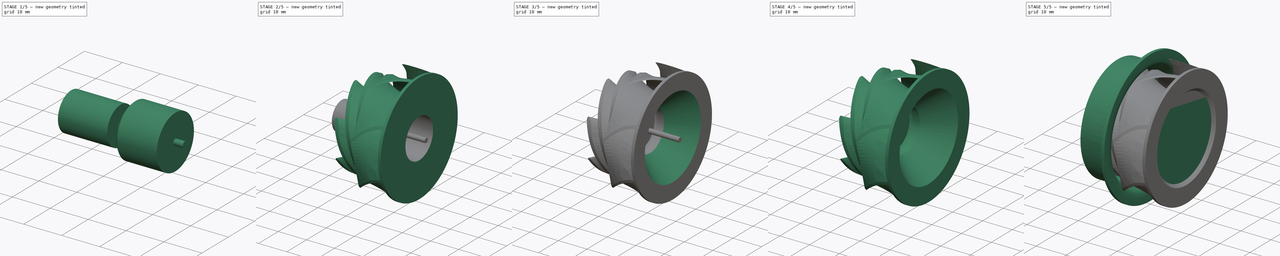
[diagram: build sequence overview — one tinted view per stage of 5, left to right]
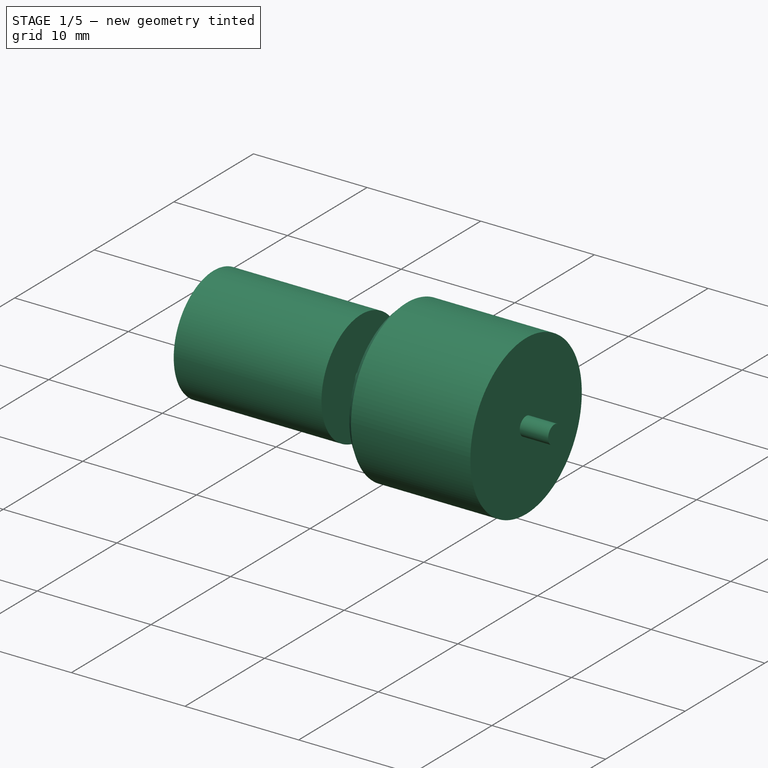
[diagram: stage 1 of 5 — iso view after this stage's code; geometry added in this stage tinted green]
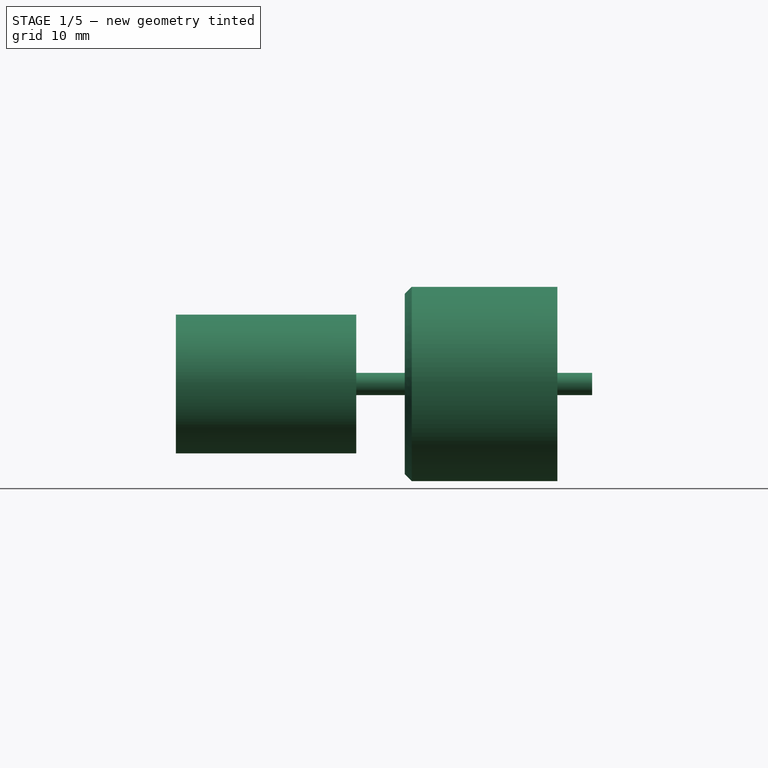
[diagram: stage 1 of 5 — front view after this stage's code; geometry added in this stage tinted green]
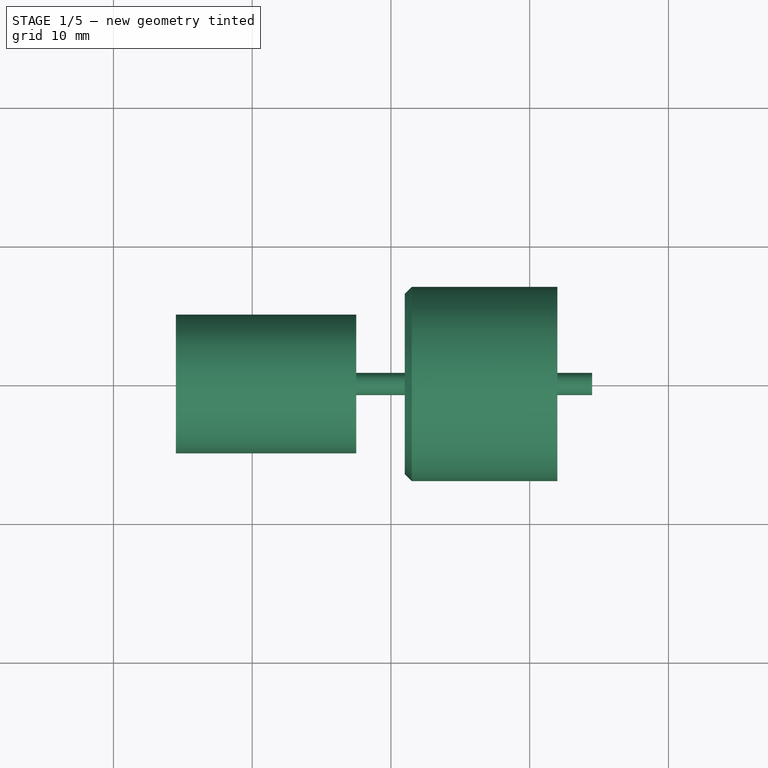
[diagram: stage 1 of 5 — top view after this stage's code; geometry added in this stage tinted green]
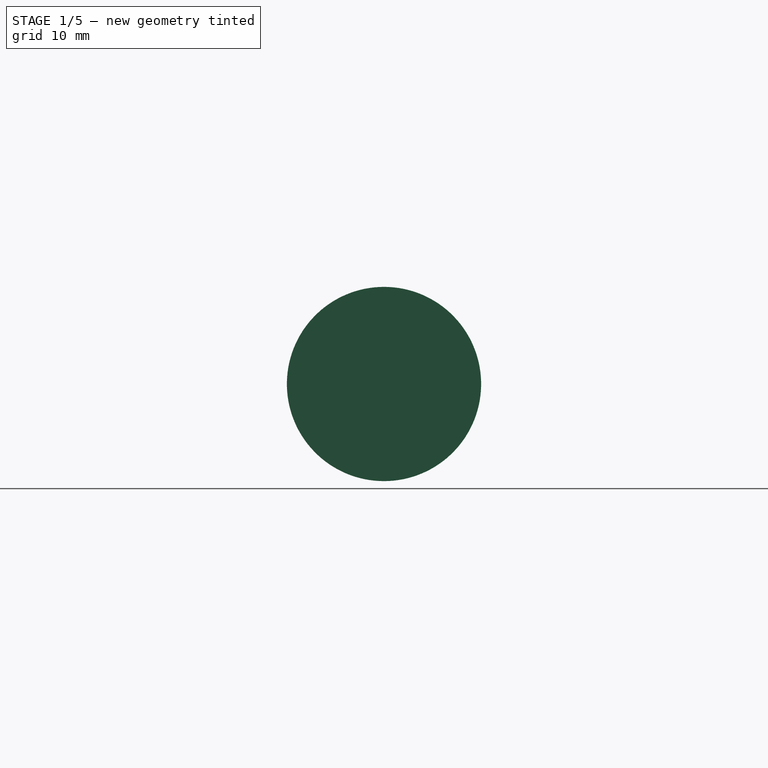
[diagram: stage 1 of 5 — right view after this stage's code; geometry added in this stage tinted green]
FCSTD DOCUMENT  (FreeCAD 0.19R24291 (Git))
Label: impeller
License: Other
LicenseURL: GPL3
objects: Part::Feature×5, Part::Cylinder×5, Part::Chamfer×5, Part::Cut×4, Part::FeaturePython×3, Sketcher::SketchObject×2, PartDesign::Revolution×2, PartDesign::Body×2, Part::MultiFuse×1
note: 31 computed .brp shape members not serialized (recipe doc carries the construction recipe); baked Part::Feature solids carry a one-line shape summary decoded from their .brp

FEATURE [Part::Cylinder] Cylinder001
  Angle = 360
  AttacherType = Attacher::AttachEngine3D
  Height = 11
  Placement = pos=(22,0,5e-15) rot=(0,-1,0;1.5708rad)
  Radius = 7
FEATURE [Part::Chamfer] Chamfer
  Base = -> Cylinder001
  Edges = 1 edges r=0.5: [Edge1]
FEATURE [Part::Cylinder] Cylinder003
  Angle = 360
  AttacherType = Attacher::AttachEngine3D
  Height = 13
  Placement = pos=(7.5,0,8.2e-15) rot=(0,-1,0;1.5708rad)
  Radius = 5
FEATURE [Part::Cylinder] Cylinder004
  Angle = 360
  AttacherType = Attacher::AttachEngine3D
  Height = 28
  Placement = pos=(24.5,0,5.4e-15) rot=(0,1,0;4.71239rad)
  Radius = 0.8
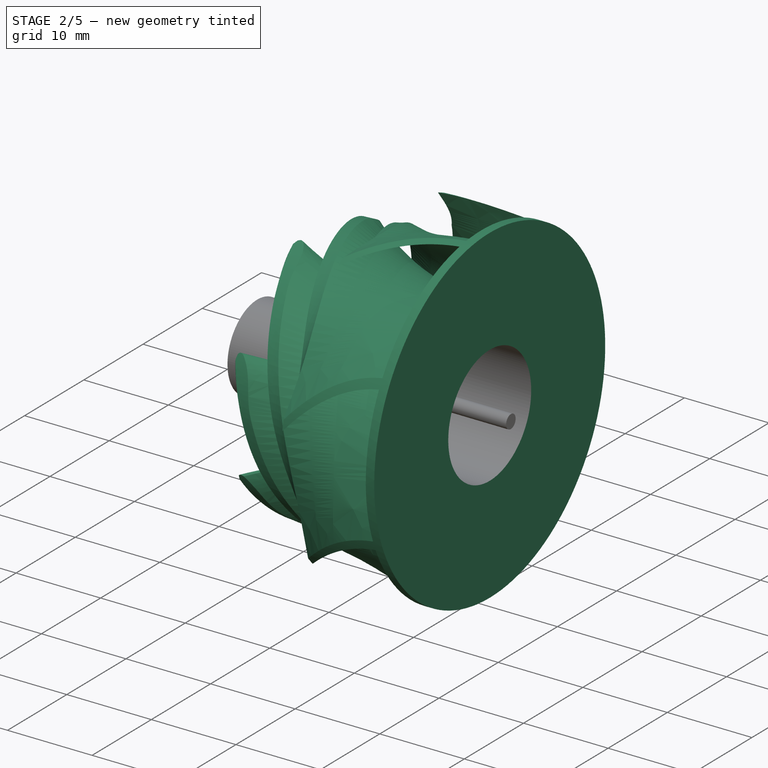
[diagram: stage 2 of 5 — iso view after this stage's code; geometry added in this stage tinted green]
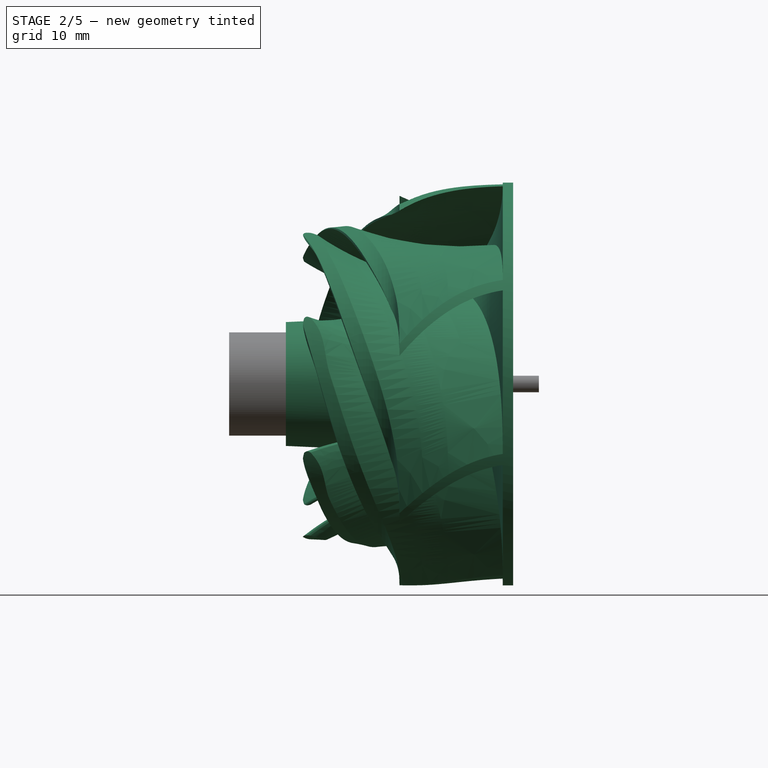
[diagram: stage 2 of 5 — front view after this stage's code; geometry added in this stage tinted green]
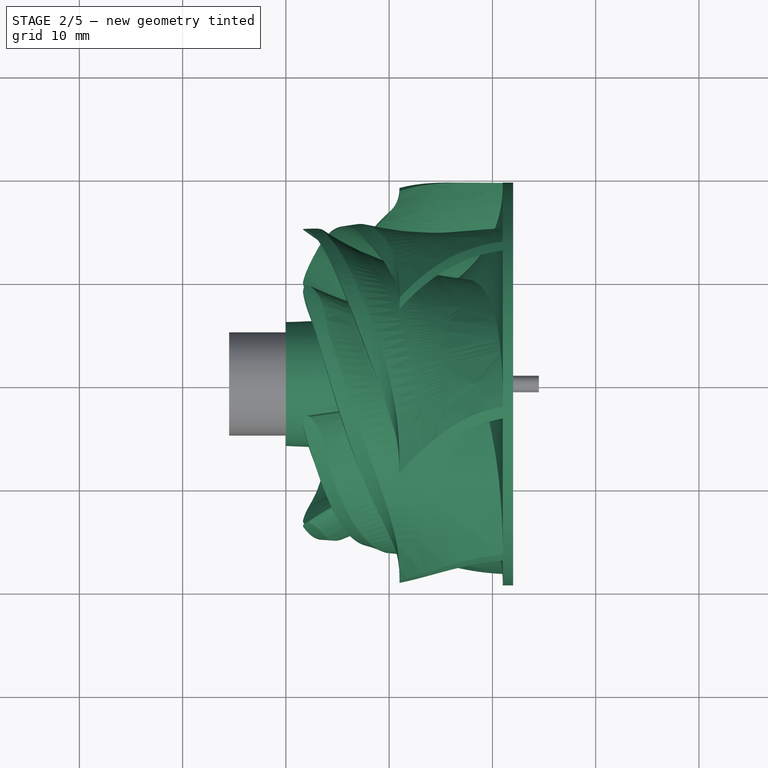
[diagram: stage 2 of 5 — top view after this stage's code; geometry added in this stage tinted green]
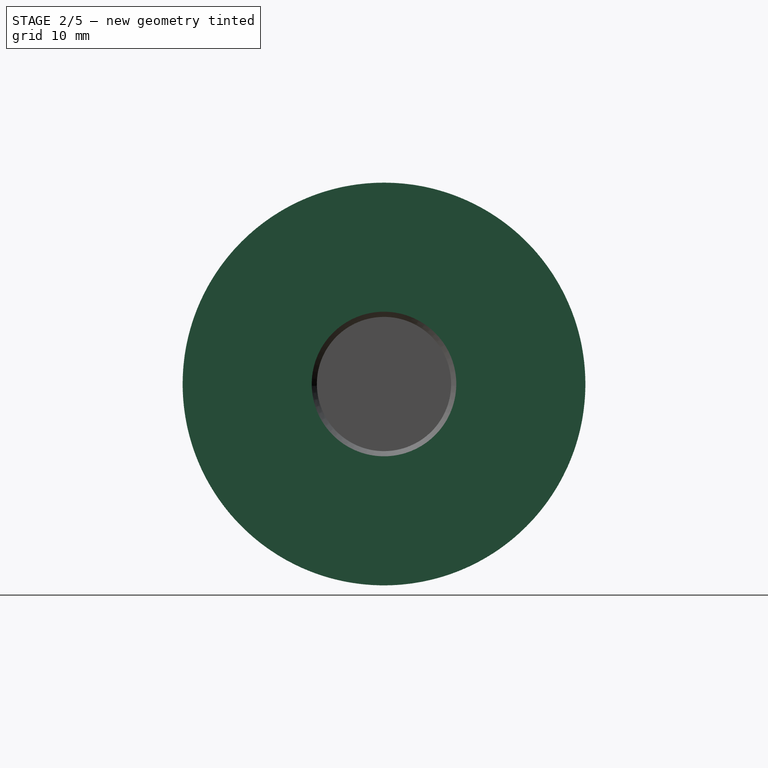
[diagram: stage 2 of 5 — right view after this stage's code; geometry added in this stage tinted green]
FEATURE [PartDesign::Body] Body  label="inner-ramp"
  Group = -> [Sketch,Revolution001]
  Origin = -> Origin
  Tip = -> Revolution001
FEATURE [Part::Feature] Blades001
  shape: bbox 21.08 x 50.2 x 50.64 mm, 70 faces, 7 solids (baked)
FEATURE [Part::Feature] Body002  label="inner-ramp001"
  shape: bbox 21 x 39 x 39 mm, 3 faces (baked)
FEATURE [Part::Cylinder] Cylinder
  Angle = 360
  AttacherType = Attacher::AttachEngine3D
  Height = 1
  Placement = pos=(22,0,4.9e-15) rot=(0,1,0;4.71239rad)
  Radius = 19.5
FEATURE [Part::MultiFuse] Fusion
  Shapes = -> [Blades001,Body002,Cylinder]
FEATURE [Part::Cut] Cut
  Base = -> Fusion
  Tool = -> Chamfer
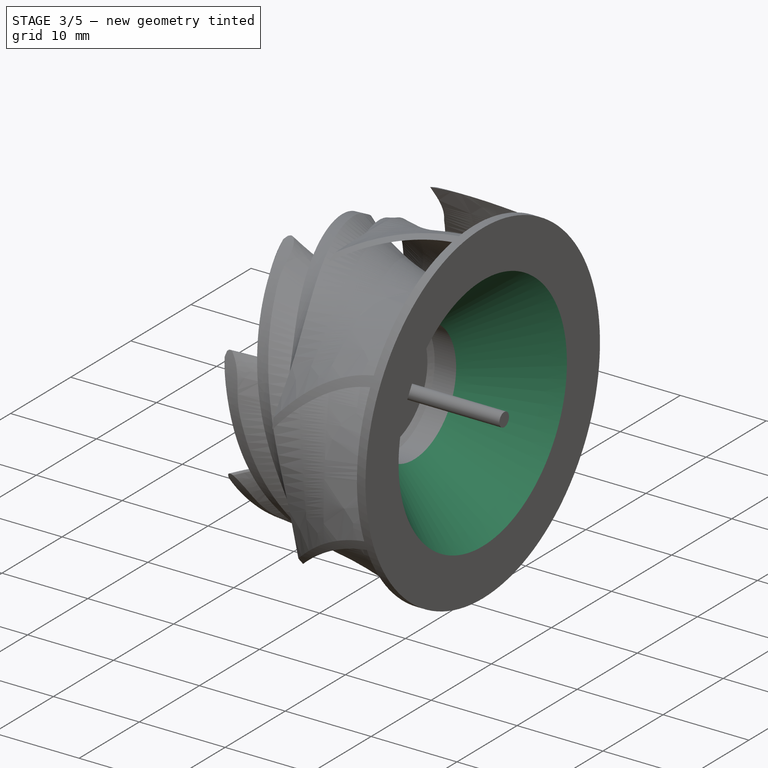
[diagram: stage 3 of 5 — iso view after this stage's code; geometry added in this stage tinted green]
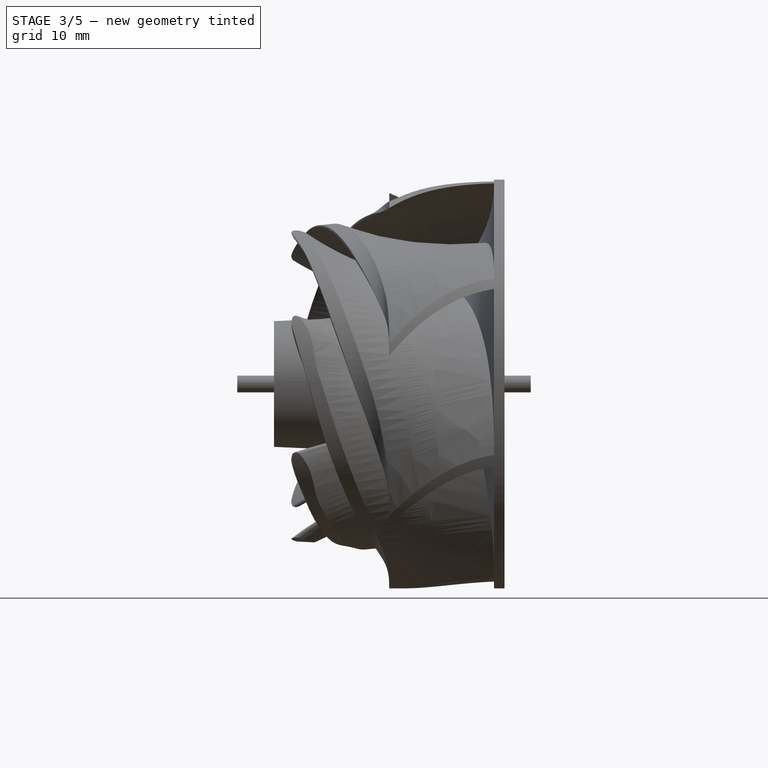
[diagram: stage 3 of 5 — front view after this stage's code; geometry added in this stage tinted green]
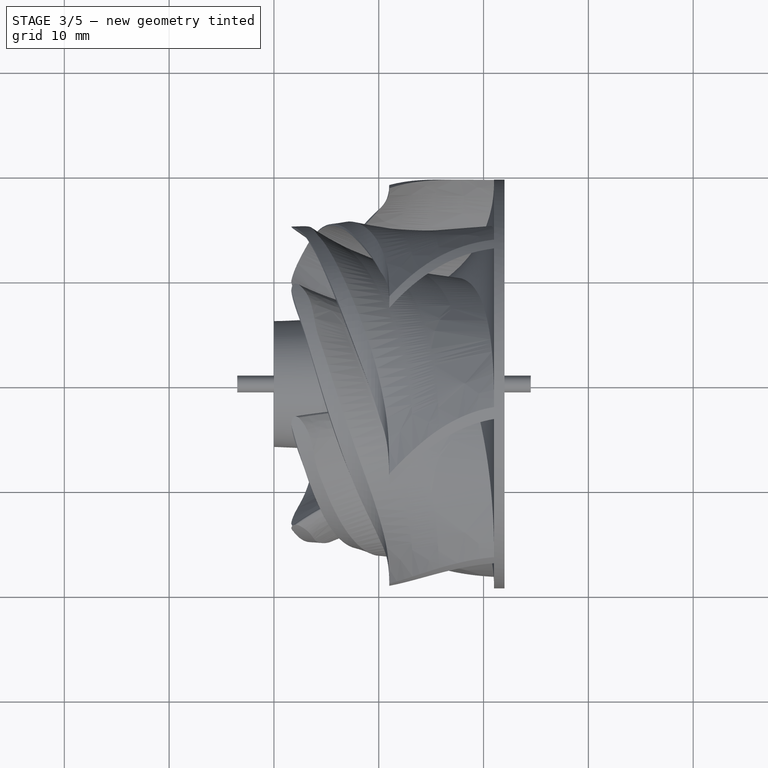
[diagram: stage 3 of 5 — top view after this stage's code; geometry added in this stage tinted green]
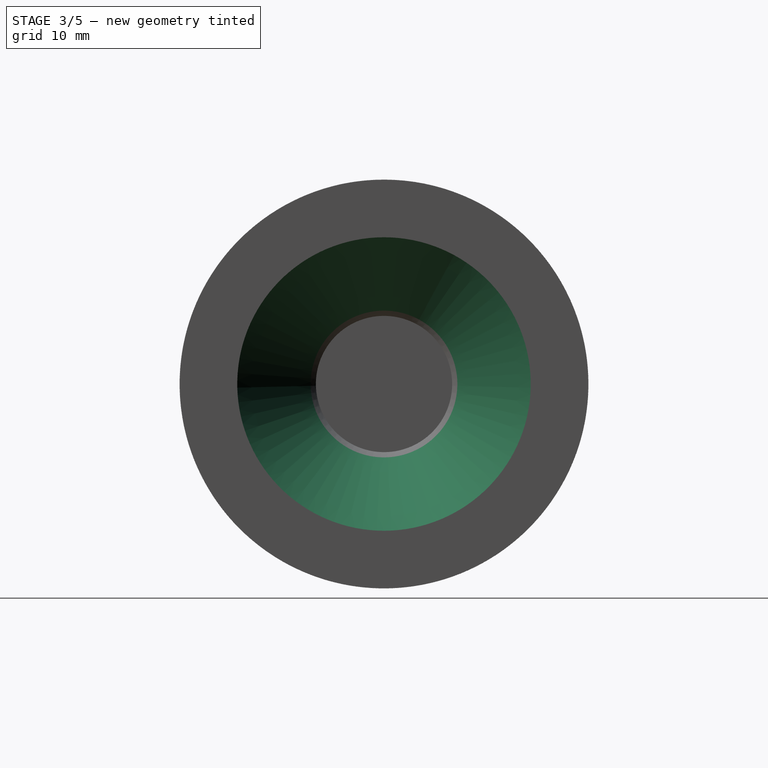
[diagram: stage 3 of 5 — right view after this stage's code; geometry added in this stage tinted green]
FEATURE [Part::Cylinder] Cylinder002
  Angle = 360
  AttacherType = Attacher::AttachEngine3D
  Height = 9
  Placement = pos=(23,0,4.8e-15) rot=(0,-1,0;1.5708rad)
  Radius = 14
FEATURE [Part::Chamfer] Chamfer001
  Base = -> Cylinder002
  Edges = 1 edges: [Edge1 r1=8 r2=7]
FEATURE [Part::Cut] Cut001
  Base = -> Cut
  Tool = -> Cylinder003
FEATURE [Part::Cut] Cut002
  Base = -> Cut001
  Tool = -> Chamfer001
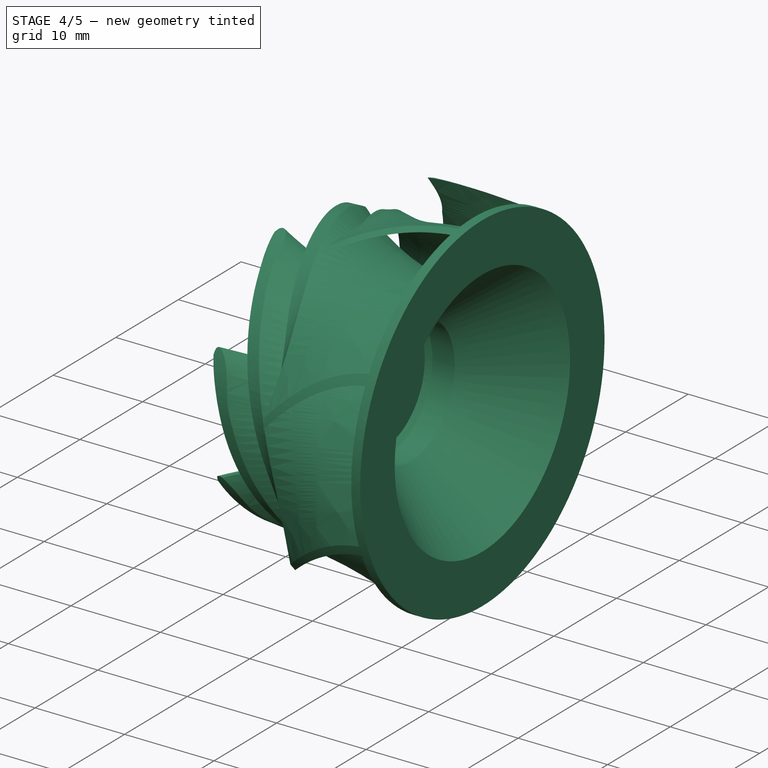
[diagram: stage 4 of 5 — iso view after this stage's code; geometry added in this stage tinted green]
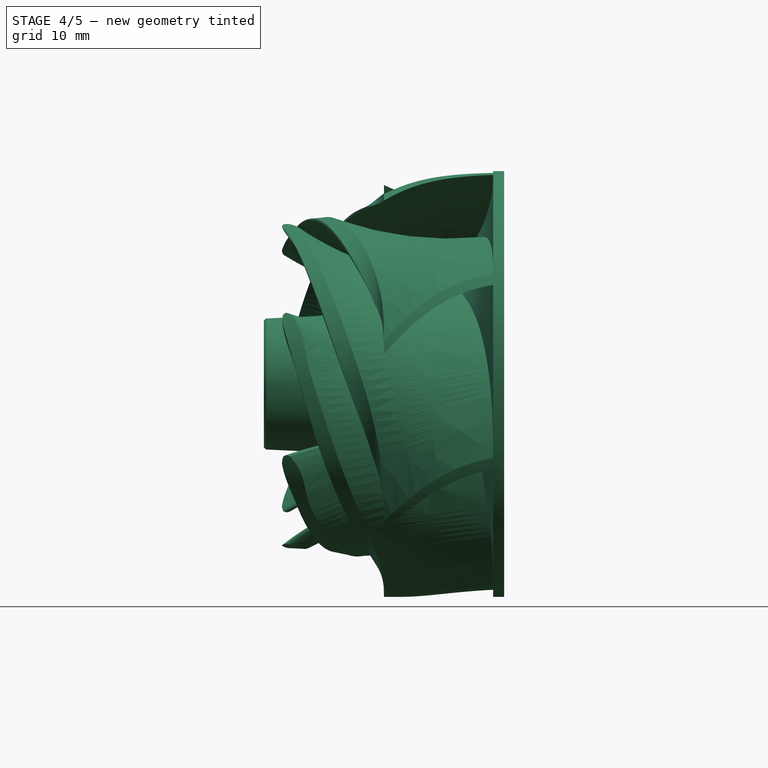
[diagram: stage 4 of 5 — front view after this stage's code; geometry added in this stage tinted green]
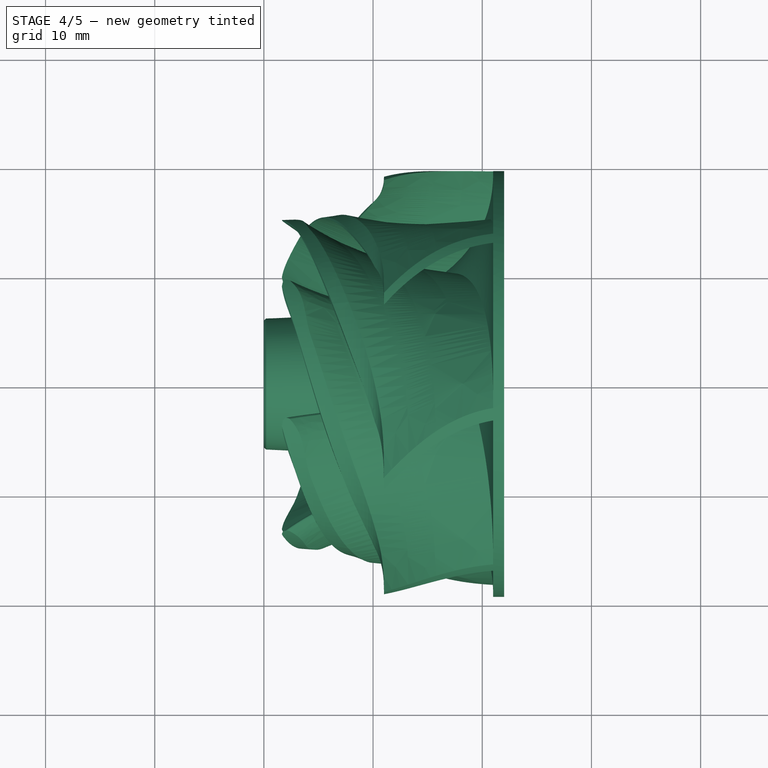
[diagram: stage 4 of 5 — top view after this stage's code; geometry added in this stage tinted green]
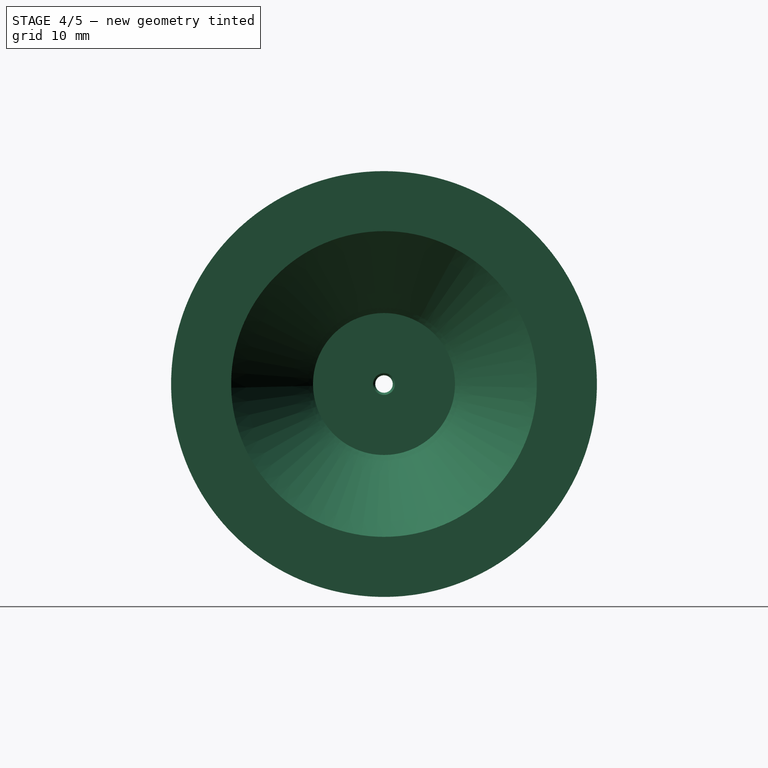
[diagram: stage 4 of 5 — right view after this stage's code; geometry added in this stage tinted green]
FEATURE [Part::Cut] Cut003
  Base = -> Cut002
  Tool = -> Cylinder004
FEATURE [Part::Chamfer] Chamfer002
  Base = -> Cut003
  Edges = 2 edges r=0.2: [Edge185,Edge189]
FEATURE [Part::Chamfer] Chamfer003
  Base = -> Chamfer002
  Edges = 2 edges r=0.2: [Edge5,Edge9]
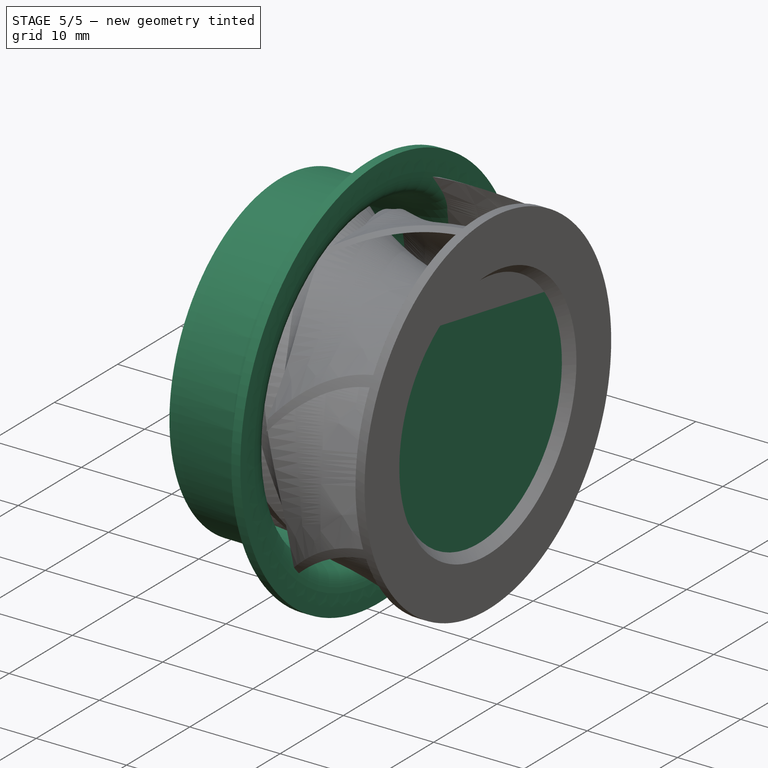
[diagram: stage 5 of 5 — iso view after this stage's code; geometry added in this stage tinted green]
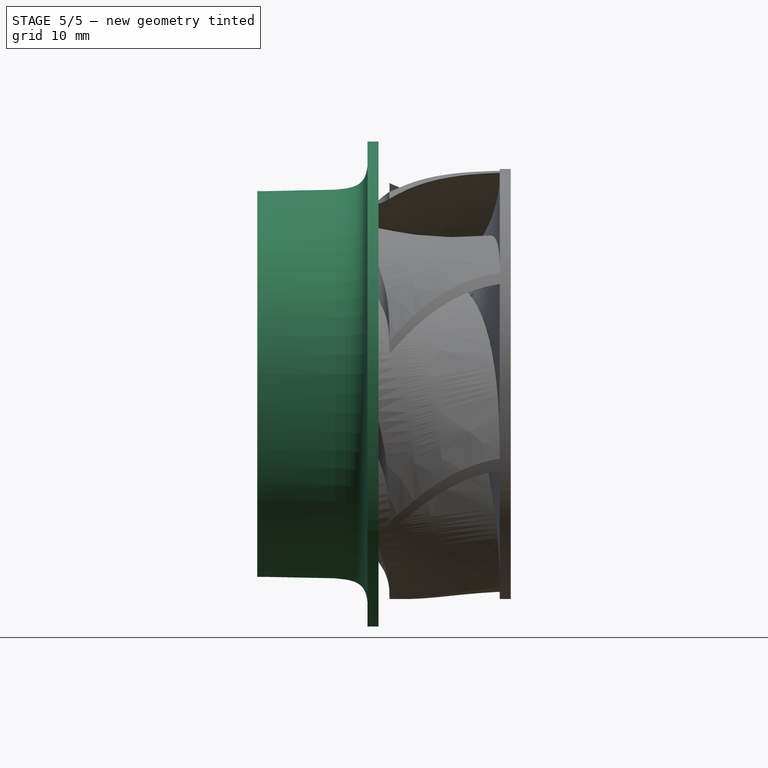
[diagram: stage 5 of 5 — front view after this stage's code; geometry added in this stage tinted green]
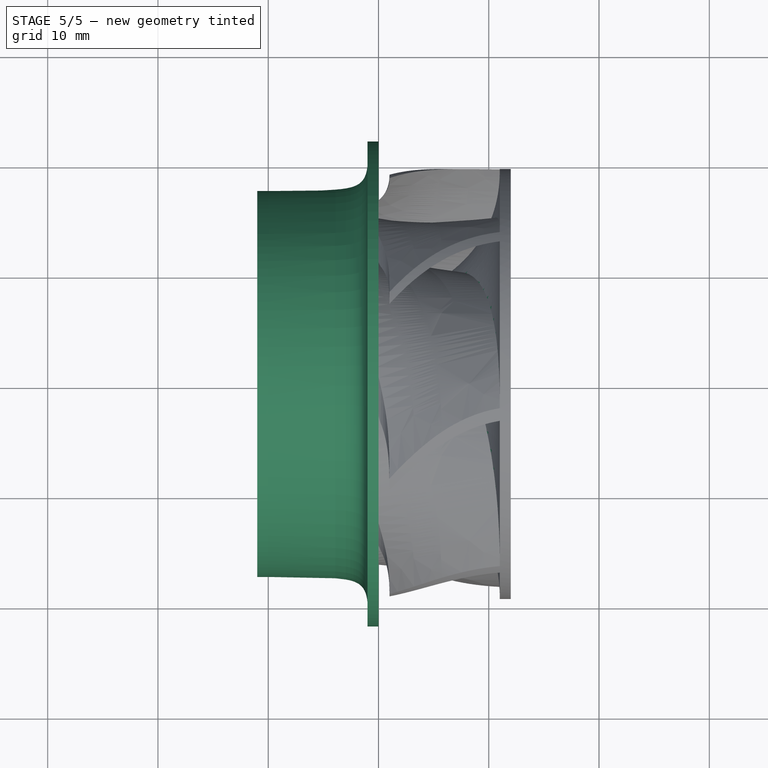
[diagram: stage 5 of 5 — top view after this stage's code; geometry added in this stage tinted green]
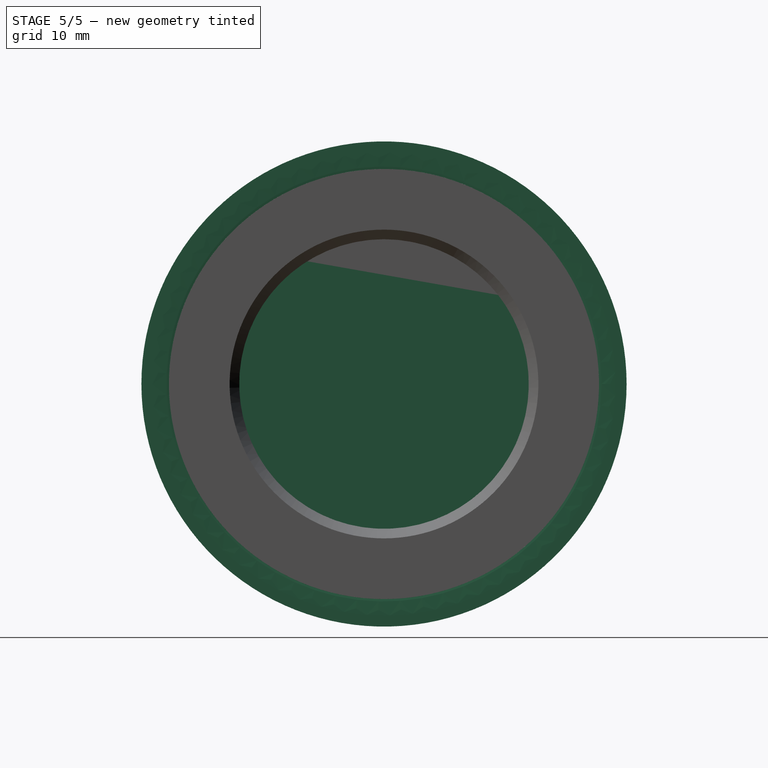
[diagram: stage 5 of 5 — right view after this stage's code; geometry added in this stage tinted green]
FEATURE [Part::Feature] Pocket001001  label="hub-template"
  Placement = pos=(21,0,4.7e-15) rot=(0,1,0;4.71239rad)
  shape: bbox 14.5 x 16 x 16 mm, 9 faces (baked)
FEATURE [Part::FeaturePython] Meridional  # WARN: FeaturePython — macro-defined, semantics opaque (R4)
  CylinricalBlades = false
  D0 = 30
  D2 = 39
  L = 11
  LePositionAverage = 40
  LePositionHub = 55
  LePositionShroud = 15
  b2 = 10
  d0 = 12
FEATURE [Part::FeaturePython] ModelOfBlade3D  # WARN: FeaturePython — macro-defined, semantics opaque (R4)
  AngleBeta1Ave = 26
  AngleBeta1Hub = 32
  AngleBeta1Shroud = 15
  AngleBeta2Ave = 25
  AngleBeta2Hub = 25
  AngleBeta2Shroud = 25
  AngleBetaPoint1Ave = (40,25.5,0)
  AngleBetaPoint1Hub = (40,29,0)
  AngleBetaPoint1Shroud = (40,18,0)
  AngleBetaPoint2Ave = (75,25,0)
  AngleBetaPoint2Hub = (75,27,0)
  AngleBetaPoint2Shroud = (75,22.5,0)
  AnglesChartAverage = false
  AnglesChartHub = false
  AnglesChartShroud = false
  N = 1000
FEATURE [Part::FeaturePython] Blades  # WARN: FeaturePython — macro-defined, semantics opaque (R4)
  FullDomainCFD = false
  HalfD3toD2 = 1.2
  LeadingEdgeType = 1
  NumberOfBlades = 7
  PeriodicDomainCFD = false
  ThicknessLEAve = 0.3
  ThicknessLEHub = 0.3
  ThicknessLEShroud = 0.3
  ThicknessPoint1Ave = (40,0.78,0)
  ThicknessPoint1Hub = (40,0.78,0)
  ThicknessPoint1Shroud = (40,0.78,0)
  ThicknessPoint2Ave = (75,0.78,0)
  ThicknessPoint2Hub = (75,0.78,0)
  ThicknessPoint2Shroud = (75,0.78,0)
  ThicknessTEAve = 0.3
  ThicknessTEHub = 0.3
  ThicknessTEShroud = 0.3
  TraillingEdgeEllipse = false
  TraillingEdgeType = 1
FEATURE [Sketcher::SketchObject] Sketch
  FullyConstrained = false
  MapMode = 5
  Support = -> [XY_Plane]
  sketch-geometry (4):
    g0: BSplineCurve PolesCount=4 KnotsCount=2 Degree=3 IsPeriodic=0
    g1: LineSegment StartX=0 StartY=6 StartZ=0 EndX=0 EndY=0 EndZ=0
    g2: LineSegment StartX=0 StartY=0 StartZ=0 EndX=21 EndY=0 EndZ=0
    g3: LineSegment StartX=21 StartY=0 StartZ=0 EndX=21 EndY=19.5 EndZ=0
  constraints (11):
    c: DistanceY(g-1,g0) = 6
    c: DistanceY(g-1,g0) = 19.5
    c: DistanceX(g0,g-1) = 0
    c: DistanceX(g-1,g0) = 21
    c: Coincident(g1,g0)
    c: Coincident(g1,g-1)
    c: Coincident(g1,g2)
    c: PointOnObject(g2,g-1)
    c: Coincident(g2,g3)
    c: Coincident(g3,g0)
    c: Vertical(g3)
FEATURE [Sketcher::SketchObject] Sketch001
  FullyConstrained = false
  MapMode = 5
  Support = -> [XY_Plane001]
  sketch-geometry (28):
    g0: LineSegment StartX=0 StartY=16.5 StartZ=0 EndX=-1 EndY=16.5 EndZ=0
    g1: LineSegment StartX=10 StartY=21 StartZ=0 EndX=10 EndY=22 EndZ=0
    g2: LineSegment StartX=-1 StartY=17.5 StartZ=0 EndX=0 EndY=17.5 EndZ=0
    g3: LineSegment StartX=9 StartY=22 StartZ=0 EndX=9 EndY=21 EndZ=0
    g4: LineSegment StartX=9 StartY=22 StartZ=0 EndX=10 EndY=22 EndZ=0
    g5: LineSegment StartX=-1 StartY=17.5 StartZ=0 EndX=-1 EndY=16.5 EndZ=0
    g6-g11: Circle x6 (B-spline internal-alignment scaffolding for g12; pole/knot coordinates omitted)
    g12: BSplineCurve PolesCount=6 KnotsCount=4 Degree=3 IsPeriodic=0
    g13-g16: GeomPoint x4 (B-spline internal-alignment scaffolding for g12; pole/knot coordinates omitted)
    g17-g22: Circle x6 (B-spline internal-alignment scaffolding for g23; pole/knot coordinates omitted)
    g23: BSplineCurve PolesCount=6 KnotsCount=4 Degree=3 IsPeriodic=0
    g24-g27: GeomPoint x4 (B-spline internal-alignment scaffolding for g23; pole/knot coordinates omitted)
  constraints (32):
    c: PointOnObject(g0,g-2)
    c: Horizontal(g0)
    c: Vertical(g1)
    c: DistanceX(g0,g0) = 1
    c: DistanceX(g-1,g1) = 10
    c: DistanceY(g-1,g1) = 21
    c: DistanceY(g1,g1) = 1
    c: DistanceY(g-1,g0) = 16.5
    c: PointOnObject(g2,g-2)
    c: Horizontal(g2)
    c: Vertical(g3)
    c: DistanceY(g3,g3) = 1
    c: Coincident(g4,g3)
    c: Coincident(g4,g1)
    c: Horizontal(g4)
    c: DistanceX(g4,g4) = 1
    c: Coincident(g5,g2)
    c: Coincident(g5,g0)
    c: Vertical(g5)
    c: DistanceY(g5,g5) = 1
    c: Coincident(g12,g0)
    c: Weight(g6) = 1
    c: Equal(g6, g7-g11) x5
    c: Coincident(g12,g1)
    c: InternalAlignment(g6-g11 -> g12) x6
    c: InternalAlignment(g13-g16 -> g12) x4
    c: Coincident(g23,g2)
    c: Weight(g17) = 1
    c: Equal(g17, g18-g22) x5
    c: Coincident(g23,g3)
    c: InternalAlignment(g17-g22 -> g23) x6
    c: InternalAlignment(g24-g27 -> g23) x4
FEATURE [PartDesign::Revolution] Revolution
  Angle = 360
  Axis = (1,0,0)
  Base = (0,0,0)
  Profile = -> Sketch001
  ReferenceAxis = -> Sketch001 [H_Axis]
FEATURE [PartDesign::Body] Body001  label="outer-ramp"
  Group = -> [Sketch001,Revolution]
  Origin = -> Origin001
  Tip = -> Revolution
FEATURE [PartDesign::Revolution] Revolution001
  Angle = 360
  Axis = (1,0,0)
  Base = (0,0,0)
  Profile = -> Sketch
  ReferenceAxis = -> Sketch [H_Axis]
FEATURE [Part::Chamfer] Chamfer004
  Base = -> Chamfer003
  Edges = 1 edges r=1: [Edge3]
FEATURE [Part::Feature] Body001001  label="outer-ramp001"
  shape: bbox 11 x 44 x 44 mm, 8 faces (baked)
FEATURE [Part::Feature] Chamfer004001
  shape: bbox 22 x 50.2 x 50.64 mm, 74 faces (baked)
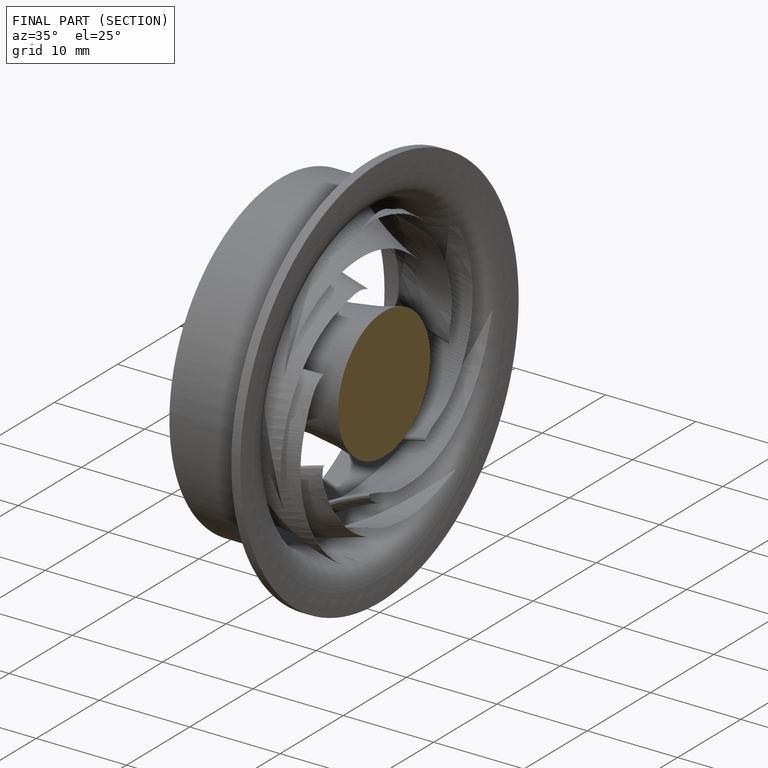
[diagram: finished part — half-section view (interior)]
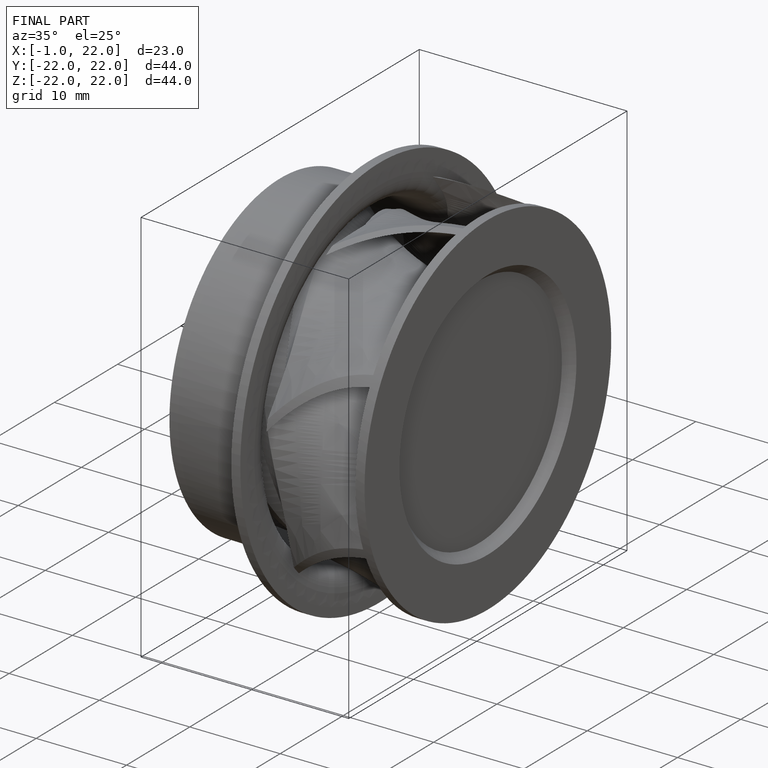
[diagram: finished part — iso view with bounding-box wireframe]
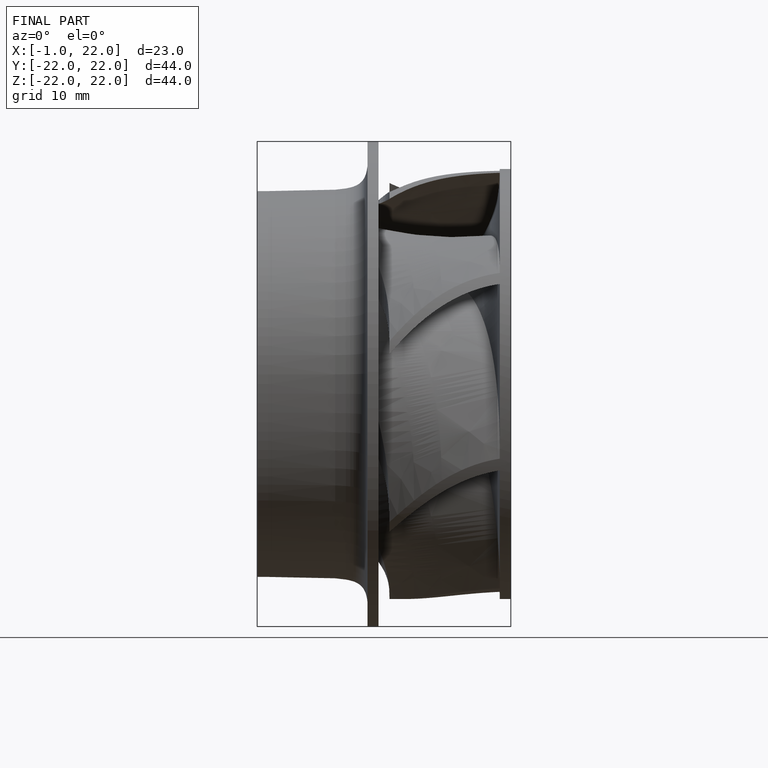
[diagram: finished part — front view with bounding-box wireframe]
